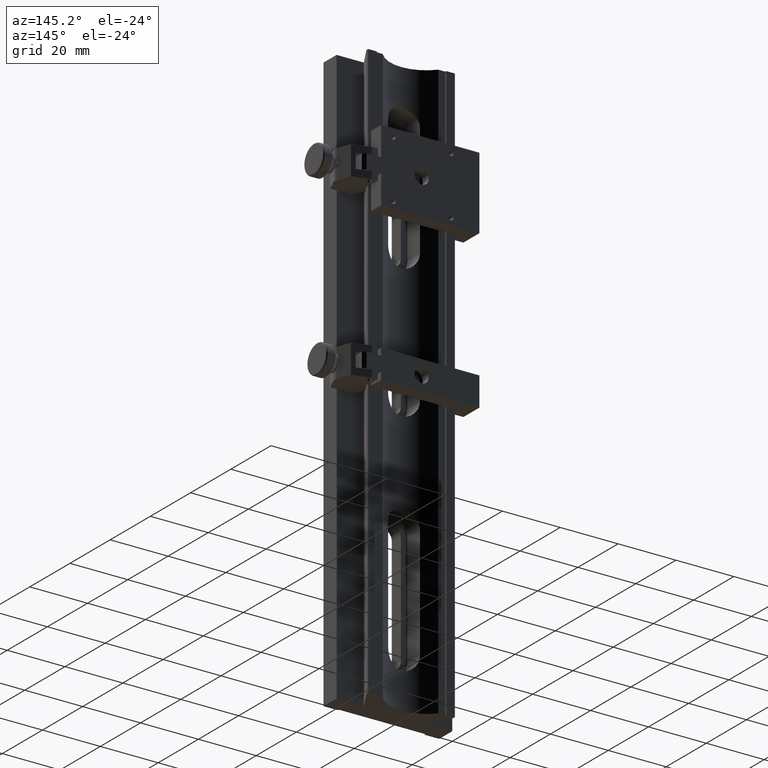
[diagram: clean part render]
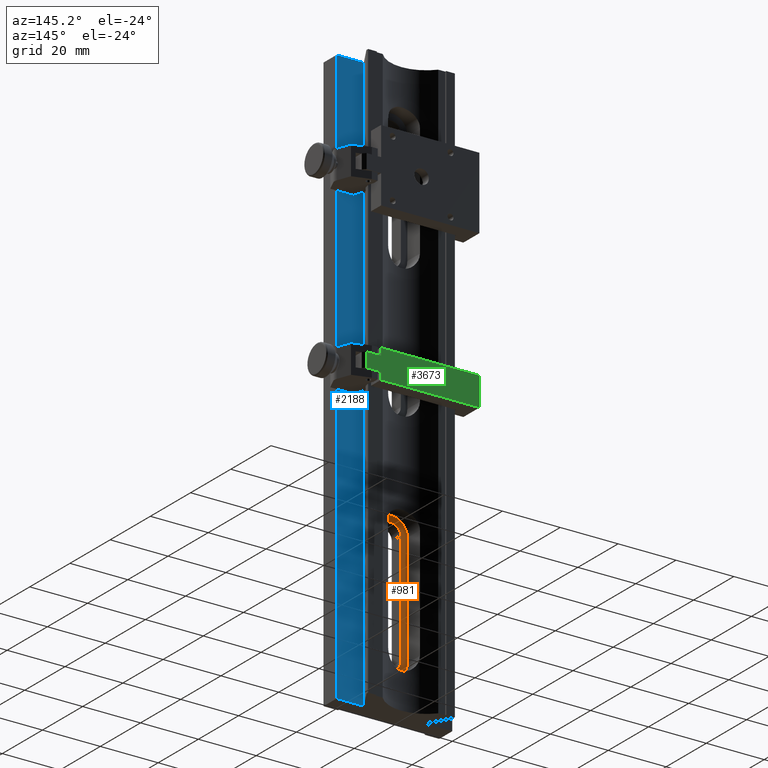
[diagram: same view with three faces highlighted in distinct colors, each labeled with its STEP entity id]
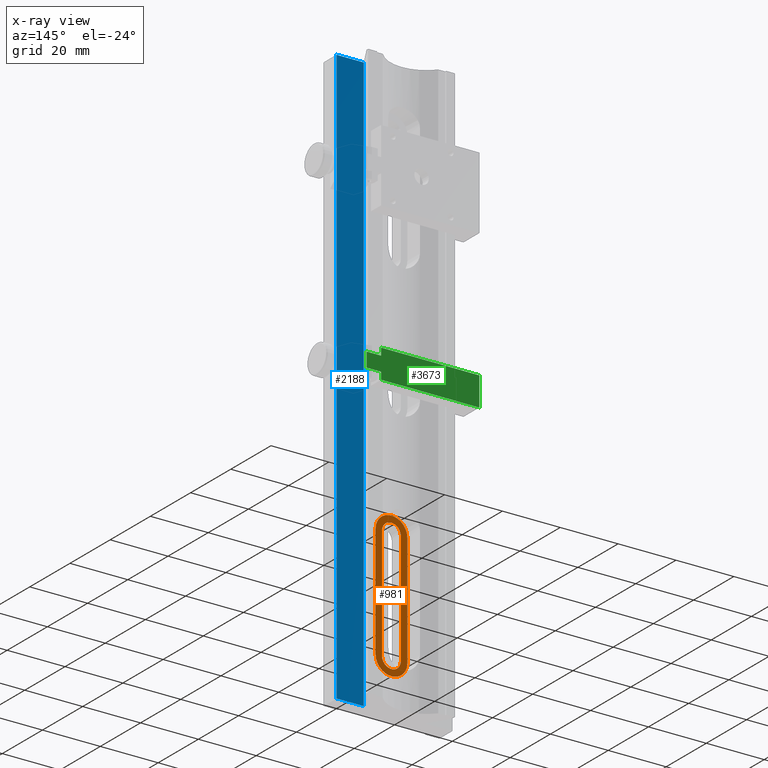
[diagram: x-ray of the same camera — body ghosted, the three highlighted faces saturated]
A machine part, auxiliary view with three faces highlighted in distinct colors.
The next image is the same camera in x-ray (body ghosted, the three faces saturated) — at least one of them is partly hidden behind the body in this view.
Their STEP definitions:

[orange] entity #981 — the highlighted planar face has unit normal (0, -1, 0).
#92 = VERTEX_POINT ( 'NONE', #6379 ) ;
#146 = FACE_OUTER_BOUND ( 'NONE', #1241, .T. ) ;
#174 = AXIS2_PLACEMENT_3D ( 'NONE', #3155, #208, #663 ) ;
#190 = CARTESIAN_POINT ( 'NONE',  ( -5.368688533928914978E-15, -81.99999999999998579, 1.499999999999999556 ) ) ;
#208 = DIRECTION ( 'NONE',  ( -0.000000000000000000, -0.000000000000000000, -1.000000000000000000 ) ) ;
#220 = DIRECTION ( 'NONE',  ( -0.000000000000000000, -0.000000000000000000, -1.000000000000000000 ) ) ;
#227 = ORIENTED_EDGE ( 'NONE', *, *, #6388, .F. ) ;
#396 = CIRCLE ( 'NONE', #609, 5.499999999999998224 ) ;
#403 = CARTESIAN_POINT ( 'NONE',  ( -5.500000000000002665, -81.99999999999998579, 1.499999999999999556 ) ) ;
#420 = CARTESIAN_POINT ( 'NONE',  ( -5.500000000000002665, -81.99999999999998579, 1.499999999999999556 ) ) ;
#460 = ORIENTED_EDGE ( 'NONE', *, *, #1689, .F. ) ;
#511 = EDGE_CURVE ( 'NONE', #1706, #681, #396, .T. ) ;
#609 = AXIS2_PLACEMENT_3D ( 'NONE', #190, #220, #4792 ) ;
#663 = DIRECTION ( 'NONE',  ( -1.000000000000000000, 0.000000000000000000, 0.000000000000000000 ) ) ;
#681 = VERTEX_POINT ( 'NONE', #403 ) ;
#710 = CARTESIAN_POINT ( 'NONE',  ( 3.250000000000000444, -43.00000000000000711, 1.499999999999999556 ) ) ;
#918 = CARTESIAN_POINT ( 'NONE',  ( 5.499999999999992895, -81.99999999999998579, 1.499999999999999556 ) ) ;
#981 = ADVANCED_FACE ( 'NONE', ( #4187, #146 ), #3793, .F. ) ;
#1241 = EDGE_LOOP ( 'NONE', ( #6483, #5120, #6005, #2801 ) ) ;
#1333 = CIRCLE ( 'NONE', #174, 5.499999999999998224 ) ;
#1356 = CARTESIAN_POINT ( 'NONE',  ( 1.795495241083097500E-15, -43.00000000000000711, 1.499999999999999556 ) ) ;
#1424 = DIRECTION ( 'NONE',  ( 1.836970198721029934E-16, 1.000000000000000000, -0.000000000000000000 ) ) ;
#1689 = EDGE_CURVE ( 'NONE', #92, #3634, #2793, .T. ) ;
#1706 = VERTEX_POINT ( 'NONE', #918 ) ;
#1803 = CIRCLE ( 'NONE', #5505, 3.249999999999998668 ) ;
#1867 = CARTESIAN_POINT ( 'NONE',  ( -5.499999999999995559, -43.00000000000000711, 1.499999999999999556 ) ) ;
#1877 = LINE ( 'NONE', #4956, #5198 ) ;
#1936 = AXIS2_PLACEMENT_3D ( 'NONE', #1356, #5491, #5429 ) ;
#1956 = CARTESIAN_POINT ( 'NONE',  ( 5.500000000000000000, -43.00000000000000711, 1.499999999999999556 ) ) ;
#2163 = CARTESIAN_POINT ( 'NONE',  ( 3.249999999999992895, -81.99999999999998579, 1.499999999999999556 ) ) ;
#2398 = VERTEX_POINT ( 'NONE', #710 ) ;
#2423 = CARTESIAN_POINT ( 'NONE',  ( -3.249999999999996003, -43.00000000000000711, 1.499999999999999556 ) ) ;
#2449 = CARTESIAN_POINT ( 'NONE',  ( -3.250000000000003109, -81.99999999999998579, 1.499999999999999556 ) ) ;
#2492 = VECTOR ( 'NONE', #6203, 1000.000000000000000 ) ;
#2619 = EDGE_LOOP ( 'NONE', ( #227, #460, #3215, #3487 ) ) ;
#2793 = LINE ( 'NONE', #2449, #3902 ) ;
#2801 = ORIENTED_EDGE ( 'NONE', *, *, #6212, .T. ) ;
#2867 = EDGE_CURVE ( 'NONE', #5305, #2398, #5253, .T. ) ;
#3155 = CARTESIAN_POINT ( 'NONE',  ( 1.795495241083097500E-15, -43.00000000000000711, 1.499999999999999556 ) ) ;
#3174 = EDGE_CURVE ( 'NONE', #1706, #6284, #1877, .T. ) ;
#3215 = ORIENTED_EDGE ( 'NONE', *, *, #4510, .F. ) ;
#3223 = DIRECTION ( 'NONE',  ( 0.000000000000000000, 0.000000000000000000, 1.000000000000000000 ) ) ;
#3290 = CARTESIAN_POINT ( 'NONE',  ( 3.250000000000000444, -43.00000000000000711, 1.499999999999999556 ) ) ;
#3487 = ORIENTED_EDGE ( 'NONE', *, *, #2867, .T. ) ;
#3518 = LINE ( 'NONE', #420, #5560 ) ;
#3548 = VERTEX_POINT ( 'NONE', #1867 ) ;
#3634 = VERTEX_POINT ( 'NONE', #2423 ) ;
#3662 = DIRECTION ( 'NONE',  ( 1.000000000000000000, 0.000000000000000000, -0.000000000000000000 ) ) ;
#3755 = CARTESIAN_POINT ( 'NONE',  ( 3.249999999999992895, -81.99999999999998579, 1.499999999999999556 ) ) ;
#3793 = PLANE ( 'NONE',  #6283 ) ;
#3902 = VECTOR ( 'NONE', #4478, 1000.000000000000000 ) ;
#3967 = DIRECTION ( 'NONE',  ( -0.000000000000000000, -0.000000000000000000, -1.000000000000000000 ) ) ;
#4187 = FACE_BOUND ( 'NONE', #2619, .T. ) ;
#4478 = DIRECTION ( 'NONE',  ( 1.836970198721029934E-16, 1.000000000000000000, -0.000000000000000000 ) ) ;
#4510 = EDGE_CURVE ( 'NONE', #5305, #92, #1803, .T. ) ;
#4792 = DIRECTION ( 'NONE',  ( -1.000000000000000000, 0.000000000000000000, 0.000000000000000000 ) ) ;
#4892 = DIRECTION ( 'NONE',  ( 1.836970198721029934E-16, 1.000000000000000000, -0.000000000000000000 ) ) ;
#4894 = CARTESIAN_POINT ( 'NONE',  ( -5.368688533928914978E-15, -81.99999999999998579, 1.499999999999999556 ) ) ;
#4956 = CARTESIAN_POINT ( 'NONE',  ( 5.499999999999992895, -81.99999999999998579, 1.499999999999999556 ) ) ;
#5120 = ORIENTED_EDGE ( 'NONE', *, *, #3174, .F. ) ;
#5198 = VECTOR ( 'NONE', #4892, 1000.000000000000000 ) ;
#5253 = LINE ( 'NONE', #2163, #2492 ) ;
#5305 = VERTEX_POINT ( 'NONE', #3755 ) ;
#5392 = DIRECTION ( 'NONE',  ( -1.000000000000000000, 0.000000000000000000, 0.000000000000000000 ) ) ;
#5429 = DIRECTION ( 'NONE',  ( -1.000000000000000000, 0.000000000000000000, 0.000000000000000000 ) ) ;
#5491 = DIRECTION ( 'NONE',  ( -0.000000000000000000, -0.000000000000000000, -1.000000000000000000 ) ) ;
#5505 = AXIS2_PLACEMENT_3D ( 'NONE', #4894, #3967, #5392 ) ;
#5560 = VECTOR ( 'NONE', #1424, 1000.000000000000000 ) ;
#5835 = EDGE_CURVE ( 'NONE', #3548, #6284, #1333, .T. ) ;
#6005 = ORIENTED_EDGE ( 'NONE', *, *, #511, .T. ) ;
#6203 = DIRECTION ( 'NONE',  ( 1.836970198721029934E-16, 1.000000000000000000, -0.000000000000000000 ) ) ;
#6212 = EDGE_CURVE ( 'NONE', #681, #3548, #3518, .T. ) ;
#6283 = AXIS2_PLACEMENT_3D ( 'NONE', #3290, #3223, #3662 ) ;
#6284 = VERTEX_POINT ( 'NONE', #1956 ) ;
#6375 = CIRCLE ( 'NONE', #1936, 3.249999999999998668 ) ;
#6379 = CARTESIAN_POINT ( 'NONE',  ( -3.250000000000003109, -81.99999999999998579, 1.499999999999999556 ) ) ;
#6388 = EDGE_CURVE ( 'NONE', #3634, #2398, #6375, .T. ) ;
#6483 = ORIENTED_EDGE ( 'NONE', *, *, #5835, .T. ) ;

[blue] entity #2188 — the highlighted planar face has unit normal (0, -1, 0).
#263 = ORIENTED_EDGE ( 'NONE', *, *, #3574, .T. ) ;
#280 = CARTESIAN_POINT ( 'NONE',  ( 20.00000000000000000, 100.0000000000000000, -4.898587196589413026E-15 ) ) ;
#764 = ORIENTED_EDGE ( 'NONE', *, *, #4642, .F. ) ;
#802 = CARTESIAN_POINT ( 'NONE',  ( 10.59252271188812777, -100.0000000000000000, -2.594419806801887381E-15 ) ) ;
#821 = EDGE_LOOP ( 'NONE', ( #1474, #5551, #764, #263 ) ) ;
#1210 = CARTESIAN_POINT ( 'NONE',  ( 20.00000000000000000, -100.0000000000000000, -4.898587196589413026E-15 ) ) ;
#1284 = VECTOR ( 'NONE', #5802, 1000.000000000000000 ) ;
#1474 = ORIENTED_EDGE ( 'NONE', *, *, #4790, .T. ) ;
#1536 = DIRECTION ( 'NONE',  ( -1.000000000000000000, 0.000000000000000000, 2.449293598294706414E-16 ) ) ;
#1637 = LINE ( 'NONE', #1210, #5887 ) ;
#2188 = ADVANCED_FACE ( 'NONE', ( #3005 ), #4631, .F. ) ;
#2211 = VERTEX_POINT ( 'NONE', #5092 ) ;
#2567 = DIRECTION ( 'NONE',  ( 2.449293598294706414E-16, -0.000000000000000000, 1.000000000000000000 ) ) ;
#2635 = CARTESIAN_POINT ( 'NONE',  ( 20.00000000000000000, 100.0000000000000000, -4.898587196589413026E-15 ) ) ;
#2827 = CARTESIAN_POINT ( 'NONE',  ( 10.59252271188812777, 100.0000000000000000, -2.594419806801887381E-15 ) ) ;
#2948 = CARTESIAN_POINT ( 'NONE',  ( 20.00000000000000000, 100.0000000000000000, -4.898587196589413026E-15 ) ) ;
#2965 = AXIS2_PLACEMENT_3D ( 'NONE', #2635, #2567, #4067 ) ;
#3005 = FACE_OUTER_BOUND ( 'NONE', #821, .T. ) ;
#3230 = DIRECTION ( 'NONE',  ( -1.000000000000000000, 0.000000000000000000, 2.449293598294706414E-16 ) ) ;
#3296 = LINE ( 'NONE', #280, #1284 ) ;
#3502 = EDGE_CURVE ( 'NONE', #2211, #3555, #4293, .T. ) ;
#3555 = VERTEX_POINT ( 'NONE', #802 ) ;
#3574 = EDGE_CURVE ( 'NONE', #4117, #4946, #3296, .T. ) ;
#4067 = DIRECTION ( 'NONE',  ( 1.000000000000000000, 0.000000000000000000, -2.449293598294706414E-16 ) ) ;
#4117 = VERTEX_POINT ( 'NONE', #2948 ) ;
#4293 = LINE ( 'NONE', #2827, #4550 ) ;
#4532 = LINE ( 'NONE', #5977, #5928 ) ;
#4550 = VECTOR ( 'NONE', #5412, 1000.000000000000000 ) ;
#4631 = PLANE ( 'NONE',  #2965 ) ;
#4642 = EDGE_CURVE ( 'NONE', #4117, #2211, #4532, .T. ) ;
#4790 = EDGE_CURVE ( 'NONE', #4946, #3555, #1637, .T. ) ;
#4823 = CARTESIAN_POINT ( 'NONE',  ( 20.00000000000000000, -100.0000000000000000, -4.898587196589413026E-15 ) ) ;
#4946 = VERTEX_POINT ( 'NONE', #4823 ) ;
#5092 = CARTESIAN_POINT ( 'NONE',  ( 10.59252271188812777, 100.0000000000000000, -2.594419806801887381E-15 ) ) ;
#5412 = DIRECTION ( 'NONE',  ( -0.000000000000000000, -1.000000000000000000, -0.000000000000000000 ) ) ;
#5551 = ORIENTED_EDGE ( 'NONE', *, *, #3502, .F. ) ;
#5802 = DIRECTION ( 'NONE',  ( -0.000000000000000000, -1.000000000000000000, -0.000000000000000000 ) ) ;
#5887 = VECTOR ( 'NONE', #3230, 1000.000000000000000 ) ;
#5928 = VECTOR ( 'NONE', #1536, 1000.000000000000000 ) ;
#5977 = CARTESIAN_POINT ( 'NONE',  ( 20.00000000000000000, 100.0000000000000000, -4.898587196589413026E-15 ) ) ;

[green] entity #3673 — the highlighted planar face has unit normal (0, -1, 0).
#44 = DIRECTION ( 'NONE',  ( 0.000000000000000000, -0.000000000000000000, -1.000000000000000000 ) ) ;
#100 = EDGE_CURVE ( 'NONE', #451, #4125, #4406, .T. ) ;
#252 = ORIENTED_EDGE ( 'NONE', *, *, #4390, .F. ) ;
#451 = VERTEX_POINT ( 'NONE', #2167 ) ;
#475 = EDGE_LOOP ( 'NONE', ( #4905, #252 ) ) ;
#527 = EDGE_CURVE ( 'NONE', #2977, #1776, #3303, .T. ) ;
#546 = CARTESIAN_POINT ( 'NONE',  ( 14.00000000000000533, 5.000000000000000000, 5.000000000000000000 ) ) ;
#685 = EDGE_CURVE ( 'NONE', #3059, #4743, #4070, .T. ) ;
#809 = DIRECTION ( 'NONE',  ( 0.000000000000000000, 0.000000000000000000, 1.000000000000000000 ) ) ;
#948 = VECTOR ( 'NONE', #6109, 1000.000000000000000 ) ;
#1047 = ORIENTED_EDGE ( 'NONE', *, *, #4967, .T. ) ;
#1112 = LINE ( 'NONE', #5032, #948 ) ;
#1159 = CARTESIAN_POINT ( 'NONE',  ( 14.00000000000000355, 5.000000000000000000, 20.34701480325784573 ) ) ;
#1416 = EDGE_CURVE ( 'NONE', #4125, #6467, #3964, .T. ) ;
#1441 = CARTESIAN_POINT ( 'NONE',  ( -20.00000000000001066, 5.000000000000000000, 5.000000000000000000 ) ) ;
#1687 = LINE ( 'NONE', #1159, #5851 ) ;
#1776 = VERTEX_POINT ( 'NONE', #5836 ) ;
#1847 = DIRECTION ( 'NONE',  ( -0.000000000000000000, 1.000000000000000000, -0.000000000000000000 ) ) ;
#1911 = DIRECTION ( 'NONE',  ( -0.000000000000000000, -0.000000000000000000, 1.000000000000000000 ) ) ;
#1954 = AXIS2_PLACEMENT_3D ( 'NONE', #4890, #1966, #809 ) ;
#1966 = DIRECTION ( 'NONE',  ( -0.000000000000000000, 1.000000000000000000, -0.000000000000000000 ) ) ;
#2059 = VECTOR ( 'NONE', #1911, 1000.000000000000000 ) ;
#2084 = ORIENTED_EDGE ( 'NONE', *, *, #2202, .F. ) ;
#2156 = ORIENTED_EDGE ( 'NONE', *, *, #1416, .F. ) ;
#2167 = CARTESIAN_POINT ( 'NONE',  ( 14.00000000000000355, 5.000000000000000000, 2.499999999999998668 ) ) ;
#2202 = EDGE_CURVE ( 'NONE', #6467, #6333, #1112, .T. ) ;
#2488 = CARTESIAN_POINT ( 'NONE',  ( -20.00000000000001066, 5.000000000000000000, 5.000000000000000000 ) ) ;
#2520 = PLANE ( 'NONE',  #4656 ) ;
#2648 = LINE ( 'NONE', #5729, #4447 ) ;
#2817 = VECTOR ( 'NONE', #4354, 1000.000000000000000 ) ;
#2892 = CARTESIAN_POINT ( 'NONE',  ( 18.99999999999999645, 5.000000000000000000, -2.499999999999998668 ) ) ;
#2977 = VERTEX_POINT ( 'NONE', #2892 ) ;
#3059 = VERTEX_POINT ( 'NONE', #3593 ) ;
#3069 = CIRCLE ( 'NONE', #3820, 2.499999999999999556 ) ;
#3241 = ORIENTED_EDGE ( 'NONE', *, *, #3818, .T. ) ;
#3303 = LINE ( 'NONE', #6304, #5689 ) ;
#3363 = LINE ( 'NONE', #4286, #2817 ) ;
#3466 = DIRECTION ( 'NONE',  ( -1.000000000000000000, -0.000000000000000000, -0.000000000000000000 ) ) ;
#3557 = DIRECTION ( 'NONE',  ( 0.000000000000000000, -1.000000000000000000, 0.000000000000000000 ) ) ;
#3587 = CARTESIAN_POINT ( 'NONE',  ( 14.00000000000000355, 5.000000000000000000, -5.000000000000000000 ) ) ;
#3593 = CARTESIAN_POINT ( 'NONE',  ( 0.000000000000000000, 5.000000000000000000, 2.499999999999999556 ) ) ;
#3673 = ADVANCED_FACE ( 'NONE', ( #4947, #6024 ), #2520, .F. ) ;
#3800 = DIRECTION ( 'NONE',  ( -1.000000000000000000, -0.000000000000000000, -0.000000000000000000 ) ) ;
#3818 = EDGE_CURVE ( 'NONE', #6017, #2977, #2648, .T. ) ;
#3820 = AXIS2_PLACEMENT_3D ( 'NONE', #5946, #1847, #4338 ) ;
#3891 = VECTOR ( 'NONE', #3800, 1000.000000000000000 ) ;
#3964 = LINE ( 'NONE', #1441, #4426 ) ;
#4070 = CIRCLE ( 'NONE', #1954, 2.499999999999999556 ) ;
#4075 = EDGE_LOOP ( 'NONE', ( #6028, #3241, #5703, #5002, #1047, #2084, #2156, #6217 ) ) ;
#4125 = VERTEX_POINT ( 'NONE', #546 ) ;
#4148 = CARTESIAN_POINT ( 'NONE',  ( -20.00000000000001066, 5.000000000000000000, -5.000000000000000000 ) ) ;
#4286 = CARTESIAN_POINT ( 'NONE',  ( 14.00000000000000355, 5.000000000000000000, 2.499999999999998668 ) ) ;
#4327 = LINE ( 'NONE', #6301, #3891 ) ;
#4338 = DIRECTION ( 'NONE',  ( 0.000000000000000000, 0.000000000000000000, 1.000000000000000000 ) ) ;
#4354 = DIRECTION ( 'NONE',  ( 1.000000000000000000, 0.000000000000000000, -0.000000000000000000 ) ) ;
#4386 = CARTESIAN_POINT ( 'NONE',  ( 18.99999999999999645, 5.000000000000000000, 2.499999999999998668 ) ) ;
#4390 = EDGE_CURVE ( 'NONE', #4743, #3059, #3069, .T. ) ;
#4406 = LINE ( 'NONE', #6413, #2059 ) ;
#4426 = VECTOR ( 'NONE', #3466, 1000.000000000000000 ) ;
#4447 = VECTOR ( 'NONE', #5206, 1000.000000000000000 ) ;
#4656 = AXIS2_PLACEMENT_3D ( 'NONE', #2488, #3557, #44 ) ;
#4743 = VERTEX_POINT ( 'NONE', #6137 ) ;
#4890 = CARTESIAN_POINT ( 'NONE',  ( 0.000000000000000000, 5.000000000000000000, 0.000000000000000000 ) ) ;
#4905 = ORIENTED_EDGE ( 'NONE', *, *, #685, .F. ) ;
#4947 = FACE_BOUND ( 'NONE', #475, .T. ) ;
#4967 = EDGE_CURVE ( 'NONE', #6271, #6333, #4327, .T. ) ;
#5002 = ORIENTED_EDGE ( 'NONE', *, *, #6319, .T. ) ;
#5032 = CARTESIAN_POINT ( 'NONE',  ( -20.00000000000001066, 5.000000000000000000, 5.000000000000000000 ) ) ;
#5134 = DIRECTION ( 'NONE',  ( -0.000000000000000000, -0.000000000000000000, -1.000000000000000000 ) ) ;
#5206 = DIRECTION ( 'NONE',  ( 0.000000000000000000, 0.000000000000000000, -1.000000000000000000 ) ) ;
#5322 = DIRECTION ( 'NONE',  ( -1.000000000000000000, 0.000000000000000000, 0.000000000000000000 ) ) ;
#5689 = VECTOR ( 'NONE', #5322, 1000.000000000000000 ) ;
#5703 = ORIENTED_EDGE ( 'NONE', *, *, #527, .T. ) ;
#5729 = CARTESIAN_POINT ( 'NONE',  ( 18.99999999999999645, 5.000000000000000000, 5.000000000000000000 ) ) ;
#5836 = CARTESIAN_POINT ( 'NONE',  ( 14.00000000000000355, 5.000000000000000000, -2.499999999999998668 ) ) ;
#5851 = VECTOR ( 'NONE', #5134, 1000.000000000000000 ) ;
#5946 = CARTESIAN_POINT ( 'NONE',  ( 0.000000000000000000, 5.000000000000000000, 0.000000000000000000 ) ) ;
#6017 = VERTEX_POINT ( 'NONE', #4386 ) ;
#6024 = FACE_OUTER_BOUND ( 'NONE', #4075, .T. ) ;
#6028 = ORIENTED_EDGE ( 'NONE', *, *, #6068, .T. ) ;
#6068 = EDGE_CURVE ( 'NONE', #451, #6017, #3363, .T. ) ;
#6109 = DIRECTION ( 'NONE',  ( -0.000000000000000000, -0.000000000000000000, -1.000000000000000000 ) ) ;
#6137 = CARTESIAN_POINT ( 'NONE',  ( 3.061616997868383141E-16, 5.000000000000000000, -2.500000000000000000 ) ) ;
#6217 = ORIENTED_EDGE ( 'NONE', *, *, #100, .F. ) ;
#6271 = VERTEX_POINT ( 'NONE', #3587 ) ;
#6301 = CARTESIAN_POINT ( 'NONE',  ( -20.00000000000001066, 5.000000000000000000, -5.000000000000000000 ) ) ;
#6304 = CARTESIAN_POINT ( 'NONE',  ( 14.00000000000000355, 5.000000000000000000, -2.499999999999998668 ) ) ;
#6319 = EDGE_CURVE ( 'NONE', #1776, #6271, #1687, .T. ) ;
#6333 = VERTEX_POINT ( 'NONE', #4148 ) ;
#6413 = CARTESIAN_POINT ( 'NONE',  ( 14.00000000000000355, 5.000000000000000000, -20.34701480325784573 ) ) ;
#6467 = VERTEX_POINT ( 'NONE', #6500 ) ;
#6500 = CARTESIAN_POINT ( 'NONE',  ( -20.00000000000001066, 5.000000000000000000, 5.000000000000000000 ) ) ;